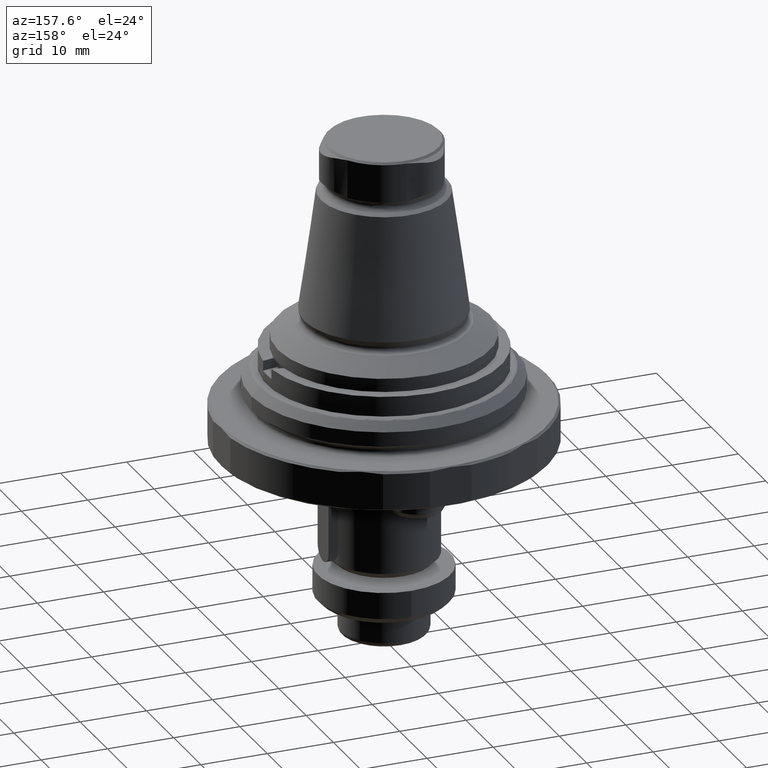
[diagram: clean part render]
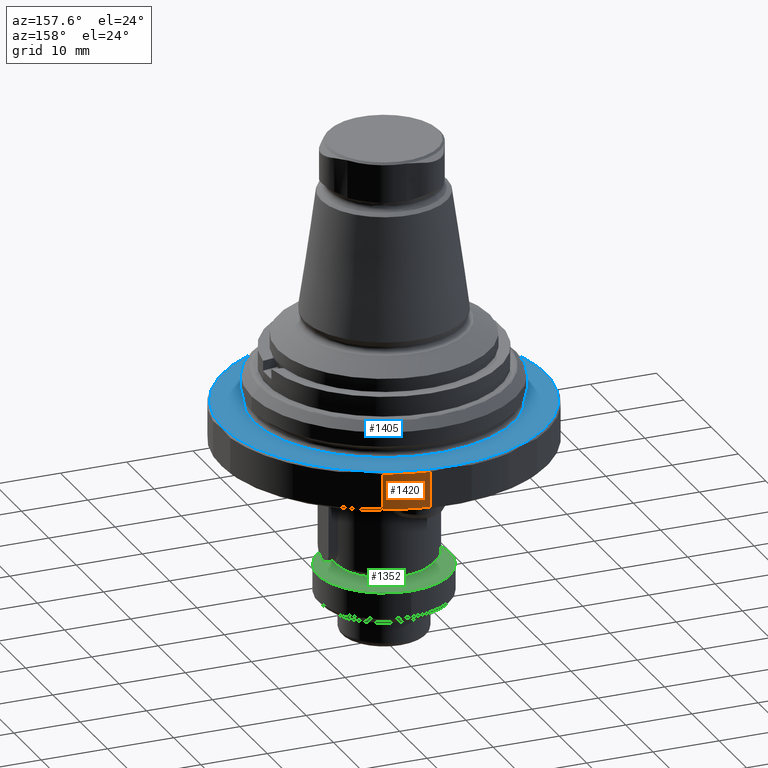
[diagram: same view with three faces highlighted in distinct colors, each labeled with its STEP entity id]
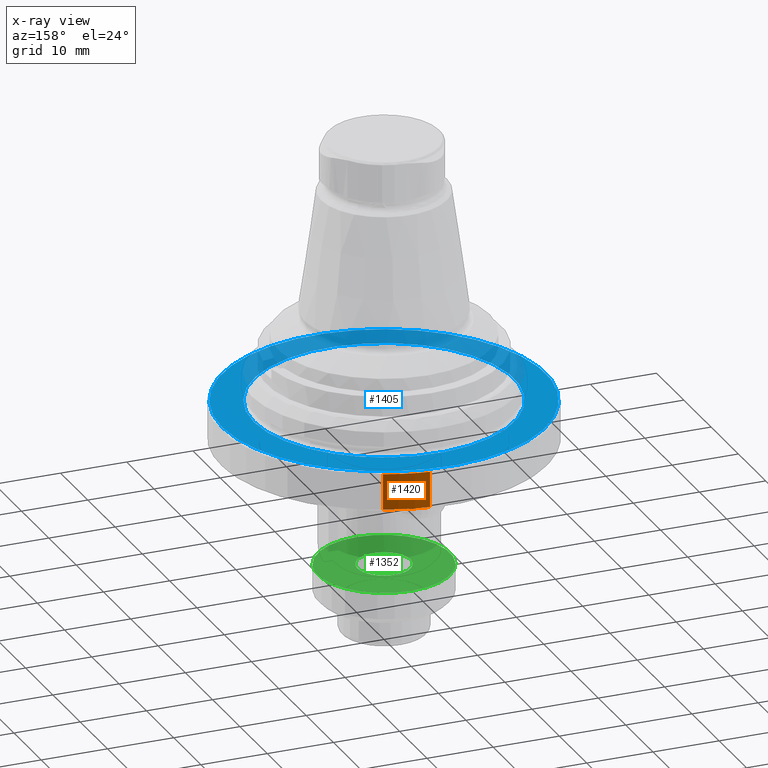
[diagram: x-ray of the same camera — body ghosted, the three highlighted faces saturated]
A machine part, auxiliary view with three faces highlighted in distinct colors.
The next image is the same camera in x-ray (body ghosted, the three faces saturated) — at least one of them is partly hidden behind the body in this view.
Their STEP definitions:

[orange] entity #1420 — the highlighted cylindrical surface (partial cylindrical patch) has radius 24.7 mm, axis along (-0, -0, -1).
#71=LINE('',#2578,#125);
#72=LINE('',#2582,#126);
#125=VECTOR('',#2021,1000.);
#126=VECTOR('',#2026,1000.);
#568=ORIENTED_EDGE('',*,*,#776,.F.);
#569=ORIENTED_EDGE('',*,*,#777,.T.);
#570=ORIENTED_EDGE('',*,*,#733,.T.);
#571=ORIENTED_EDGE('',*,*,#775,.T.);
#733=EDGE_CURVE('',#882,#883,#983,.T.);
#775=EDGE_CURVE('',#883,#911,#71,.T.);
#776=EDGE_CURVE('',#912,#911,#997,.T.);
#777=EDGE_CURVE('',#912,#882,#72,.F.);
#882=VERTEX_POINT('',#2449);
#883=VERTEX_POINT('',#2450);
#911=VERTEX_POINT('',#2577);
#912=VERTEX_POINT('',#2581);
#983=CIRCLE('',#1585,24.7);
#997=CIRCLE('',#1613,24.7);
#1139=EDGE_LOOP('',(#568,#569,#570,#571));
#1285=FACE_BOUND('',#1139,.T.);
#1326=CYLINDRICAL_SURFACE('',#1612,24.7);
#1420=ADVANCED_FACE('',(#1285),#1326,.T.);
#1585=AXIS2_PLACEMENT_3D('',#2448,#1954,#1955);
#1612=AXIS2_PLACEMENT_3D('',#2579,#2022,#2023);
#1613=AXIS2_PLACEMENT_3D('',#2580,#2024,#2025);
#1954=DIRECTION('',(-5.81167827188054E-17,-2.60563148754756E-18,-1.));
#1955=DIRECTION('',(1.,-6.12303176911189E-17,-5.81167827188054E-17));
#2021=DIRECTION('',(-5.81167827188054E-17,-2.60563148754756E-18,-1.));
#2022=DIRECTION('',(-5.81167827188054E-17,-2.60563148754756E-18,-1.));
#2023=DIRECTION('',(1.,-6.12303176911189E-17,-5.81167827188054E-17));
#2024=DIRECTION('',(-5.81167827188054E-17,-2.60563148754756E-18,-1.));
#2025=DIRECTION('',(1.,-6.12303176911189E-17,-5.81167827188054E-17));
#2026=DIRECTION('',(-5.81167827188054E-17,-2.60563148754756E-18,-1.));
#2448=CARTESIAN_POINT('',(-6.4994500285487E-16,-2.26689939416635E-17,-1.29999999999987));
#2449=CARTESIAN_POINT('',(3.13687742827159,24.5,-1.29999999999987));
#2450=CARTESIAN_POINT('',(9.53338445855882,22.7860611068545,-1.29999999999987));
#2577=CARTESIAN_POINT('',(9.53338445855882,22.7860611068545,-6.70000000000001));
#2578=CARTESIAN_POINT('',(9.53338445855882,22.7860611068545,-1.00000000000001));
#2579=CARTESIAN_POINT('',(-6.32509968039236E-16,-2.18873044953995E-17,-1.));
#2580=CARTESIAN_POINT('',(-9.63775629536427E-16,-3.67394039744206E-17,-6.70000000000001));
#2581=CARTESIAN_POINT('',(3.13687742827159,24.5,-6.70000000000001));
#2582=CARTESIAN_POINT('',(3.13687742827159,24.5,-1.));

[blue] entity #1405 — the highlighted planar face has unit normal (-0, -0, -1).
#192=PLANE('',#1582);
#497=ORIENTED_EDGE('',*,*,#731,.T.);
#498=ORIENTED_EDGE('',*,*,#732,.F.);
#731=EDGE_CURVE('',#880,#880,#981,.T.);
#732=EDGE_CURVE('',#881,#881,#982,.T.);
#880=VERTEX_POINT('',#2443);
#881=VERTEX_POINT('',#2446);
#981=CIRCLE('',#1581,19.65);
#982=CIRCLE('',#1583,24.3999999999999);
#1122=EDGE_LOOP('',(#497));
#1123=EDGE_LOOP('',(#498));
#1268=FACE_BOUND('',#1122,.T.);
#1269=FACE_BOUND('',#1123,.T.);
#1405=ADVANCED_FACE('',(#1268,#1269),#192,.F.);
#1581=AXIS2_PLACEMENT_3D('',#2442,#1946,#1947);
#1582=AXIS2_PLACEMENT_3D('',#2444,#1948,#1949);
#1583=AXIS2_PLACEMENT_3D('',#2445,#1950,#1951);
#1946=DIRECTION('',(-5.81167827188054E-17,-2.60563148754756E-18,-1.));
#1947=DIRECTION('',(1.,-6.12303176911189E-17,-5.81167827188054E-17));
#1948=DIRECTION('',(-5.81167827188054E-17,-2.60563148754756E-18,-1.));
#1949=DIRECTION('',(1.,-6.12303176911189E-17,-5.81167827188054E-17));
#1950=DIRECTION('',(-5.81167827188054E-17,-2.60563148754756E-18,-1.));
#1951=DIRECTION('',(1.,-6.12303176911189E-17,-5.81167827188054E-17));
#2442=CARTESIAN_POINT('',(-6.32509968039236E-16,-2.18873044953995E-17,-1.));
#2443=CARTESIAN_POINT('',(19.65,-1.22506304712589E-15,-1.00000000000001));
#2444=CARTESIAN_POINT('',(19.65,-1.22506304712589E-15,-1.00000000000001));
#2445=CARTESIAN_POINT('',(-6.32509968039236E-16,-2.18873044953995E-17,-1.));
#2446=CARTESIAN_POINT('',(24.3999999999999,-1.51590705615869E-15,-1.00000000000001));

[green] entity #1352 — the highlighted planar face has unit normal (-0, -0, -1).
#180=PLANE('',#1485);
#299=ORIENTED_EDGE('',*,*,#630,.T.);
#300=ORIENTED_EDGE('',*,*,#634,.F.);
#630=EDGE_CURVE('',#807,#807,#934,.T.);
#634=EDGE_CURVE('',#811,#811,#938,.T.);
#807=VERTEX_POINT('',#2136);
#811=VERTEX_POINT('',#2147);
#934=CIRCLE('',#1479,4.);
#938=CIRCLE('',#1486,10.);
#1042=EDGE_LOOP('',(#299));
#1043=EDGE_LOOP('',(#300));
#1188=FACE_BOUND('',#1042,.T.);
#1189=FACE_BOUND('',#1043,.T.);
#1352=ADVANCED_FACE('',(#1188,#1189),#180,.F.);
#1479=AXIS2_PLACEMENT_3D('',#2135,#1712,#1713);
#1485=AXIS2_PLACEMENT_3D('',#2145,#1724,#1725);
#1486=AXIS2_PLACEMENT_3D('',#2146,#1726,#1727);
#1712=DIRECTION('',(-6.60287349634202E-17,-2.56856459952217E-17,-1.));
#1713=DIRECTION('',(-1.,0.,6.60287349634202E-17));
#1724=DIRECTION('',(-6.60287349634202E-17,-2.56856459952217E-17,-1.));
#1725=DIRECTION('',(5.55111512312578E-17,1.,1.40847825098149E-16));
#1726=DIRECTION('',(-6.60287349634202E-17,-2.56856459952217E-17,-1.));
#1727=DIRECTION('',(5.55111512312578E-17,1.,1.40847825098149E-16));
#2135=CARTESIAN_POINT('',(-2.00891902805745E-15,-2.56856459952219E-17,-26.));
#2136=CARTESIAN_POINT('',(-4.,-2.56856459952219E-17,-26.));
#2145=CARTESIAN_POINT('',(-1.75911884751678E-15,4.5,-26.));
#2146=CARTESIAN_POINT('',(-2.00891902805744E-15,-2.56856459952218E-17,-26.));
#2147=CARTESIAN_POINT('',(-1.45380751574487E-15,10.,-26.));